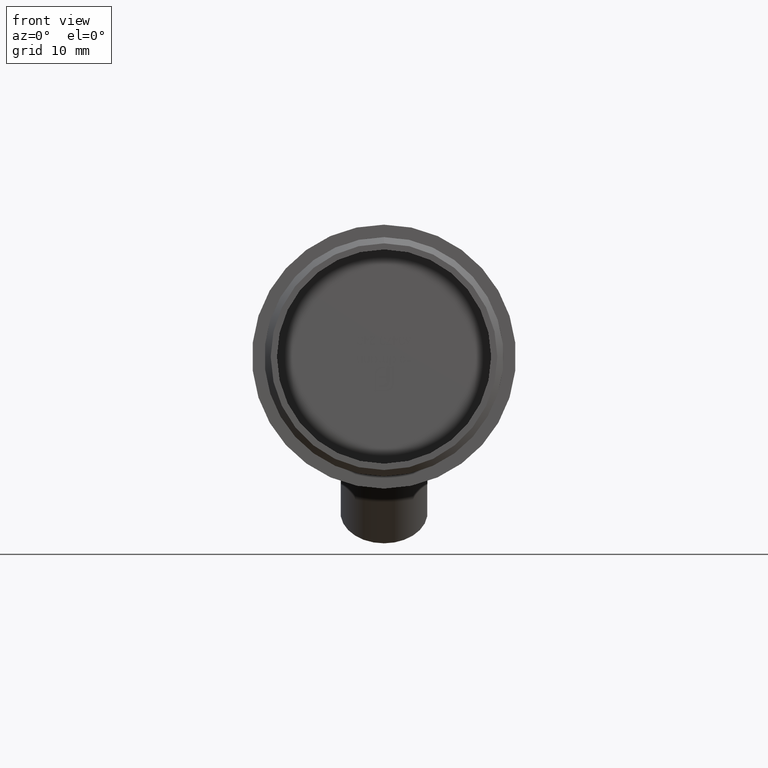
[diagram: clean part render]
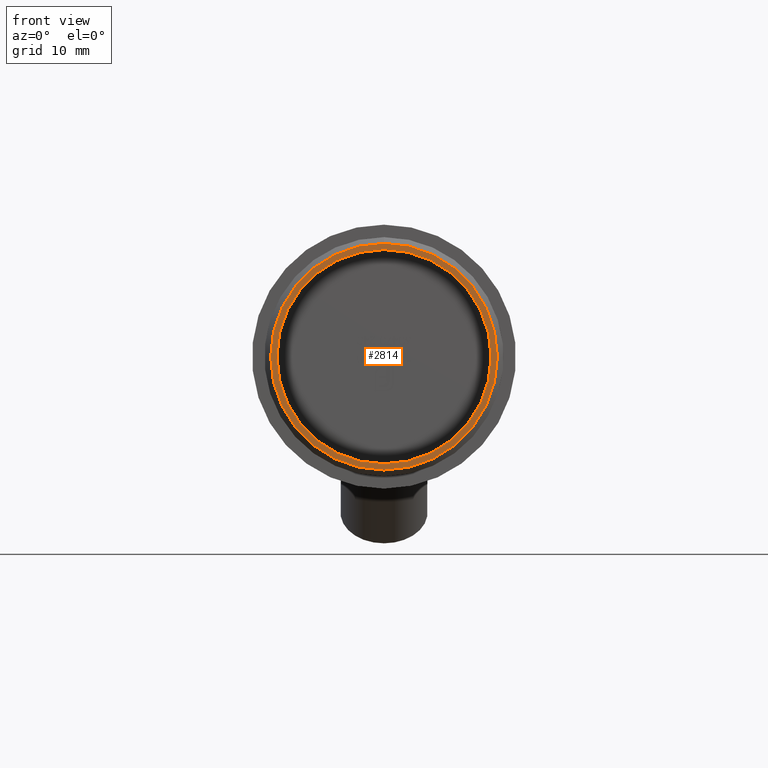
[diagram: same view with one face highlighted and labeled with its STEP entity id]
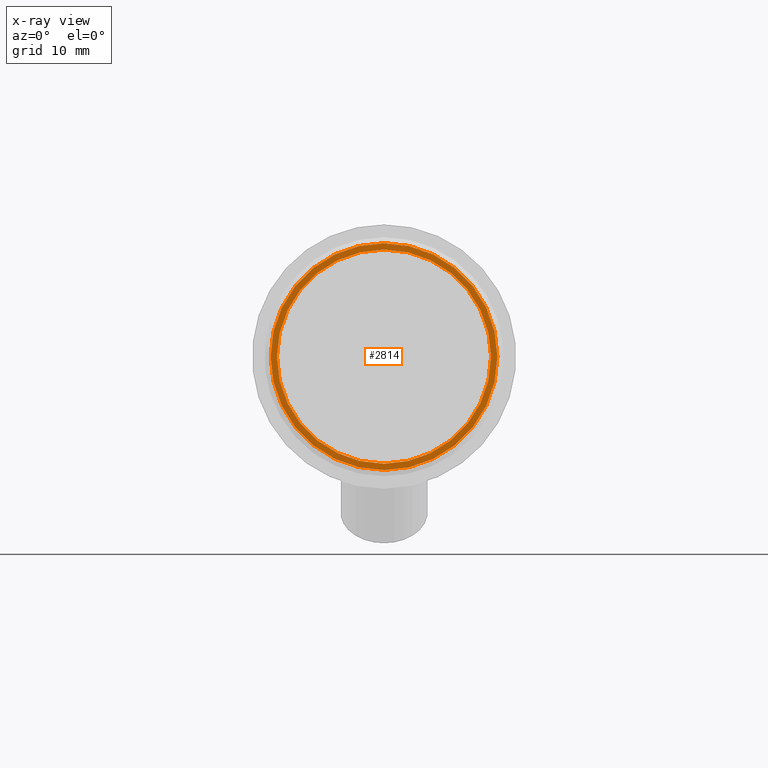
[diagram: x-ray of the same camera — body ghosted, the highlighted face saturated]
A machine part, front view. The second image highlights one B-rep face of the part: STEP entity #2814.
The next image is the same camera in x-ray: the body ghosted, the highlighted face saturated — about 0% of this face is hidden behind the body in this view.
In plain terms, the highlighted planar face has unit normal (0, -1, -0).
Its self-contained STEP definition (entity closure, byte-faithful):
#75 = DIRECTION ( 'NONE',  ( 0.000000000000000000, -1.000000000000000000, -1.224646799147353207E-16 ) ) ;
#593 = CIRCLE ( 'NONE', #7461, 18.20000000000000284 ) ;
#1033 = ORIENTED_EDGE ( 'NONE', *, *, #13016, .T. ) ;
#1674 = CIRCLE ( 'NONE', #2788, 17.19999999999999929 ) ;
#1868 = ORIENTED_EDGE ( 'NONE', *, *, #5928, .F. ) ;
#2276 = VERTEX_POINT ( 'NONE', #5483 ) ;
#2788 = AXIS2_PLACEMENT_3D ( 'NONE', #3938, #13006, #8458 ) ;
#2814 = ADVANCED_FACE ( 'NONE', ( #14632, #6603 ), #3441, .T. ) ;
#3441 = PLANE ( 'NONE',  #9434 ) ;
#3938 = CARTESIAN_POINT ( 'NONE',  ( 0.000000000000000000, -32.00000000000000000, -3.918869757271531052E-15 ) ) ;
#4263 = CARTESIAN_POINT ( 'NONE',  ( 0.000000000000000000, -32.00000000000000000, -3.918869757271531052E-15 ) ) ;
#4657 = CARTESIAN_POINT ( 'NONE',  ( 0.000000000000000000, -32.00000000000000000, 18.19999999999999929 ) ) ;
#4677 = CARTESIAN_POINT ( 'NONE',  ( 0.000000000000000000, -32.00000000000000000, 17.19999999999999574 ) ) ;
#4942 = DIRECTION ( 'NONE',  ( 0.000000000000000000, -1.000000000000000000, -1.224646799147353207E-16 ) ) ;
#5483 = CARTESIAN_POINT ( 'NONE',  ( 2.290089514405550505E-15, -32.00000000000000000, -18.20000000000000639 ) ) ;
#5928 = EDGE_CURVE ( 'NONE', #11546, #10275, #13159, .T. ) ;
#6534 = DIRECTION ( 'NONE',  ( 0.000000000000000000, 0.000000000000000000, -1.000000000000000000 ) ) ;
#6603 = FACE_BOUND ( 'NONE', #7485, .T. ) ;
#6748 = DIRECTION ( 'NONE',  ( 0.000000000000000000, 1.224646799147353207E-16, -1.000000000000000000 ) ) ;
#6763 = AXIS2_PLACEMENT_3D ( 'NONE', #10143, #75, #10193 ) ;
#7461 = AXIS2_PLACEMENT_3D ( 'NONE', #4263, #12216, #6534 ) ;
#7485 = EDGE_LOOP ( 'NONE', ( #9504, #1868 ) ) ;
#8458 = DIRECTION ( 'NONE',  ( 0.000000000000000000, 0.000000000000000000, -1.000000000000000000 ) ) ;
#8819 = EDGE_LOOP ( 'NONE', ( #13675, #1033 ) ) ;
#9434 = AXIS2_PLACEMENT_3D ( 'NONE', #14158, #4942, #6748 ) ;
#9503 = CARTESIAN_POINT ( 'NONE',  ( 0.000000000000000000, -32.00000000000000000, -3.918869757271531052E-15 ) ) ;
#9504 = ORIENTED_EDGE ( 'NONE', *, *, #11013, .F. ) ;
#9527 = CIRCLE ( 'NONE', #11204, 18.20000000000000284 ) ;
#9873 = EDGE_CURVE ( 'NONE', #10956, #2276, #9527, .T. ) ;
#10143 = CARTESIAN_POINT ( 'NONE',  ( 0.000000000000000000, -32.00000000000000000, -3.918869757271531052E-15 ) ) ;
#10193 = DIRECTION ( 'NONE',  ( 0.000000000000000000, 0.000000000000000000, -1.000000000000000000 ) ) ;
#10275 = VERTEX_POINT ( 'NONE', #4677 ) ;
#10956 = VERTEX_POINT ( 'NONE', #4657 ) ;
#11013 = EDGE_CURVE ( 'NONE', #10275, #11546, #1674, .T. ) ;
#11204 = AXIS2_PLACEMENT_3D ( 'NONE', #9503, #11697, #12947 ) ;
#11546 = VERTEX_POINT ( 'NONE', #13840 ) ;
#11697 = DIRECTION ( 'NONE',  ( 0.000000000000000000, -1.000000000000000000, -1.224646799147353207E-16 ) ) ;
#12216 = DIRECTION ( 'NONE',  ( 0.000000000000000000, -1.000000000000000000, -1.224646799147353207E-16 ) ) ;
#12947 = DIRECTION ( 'NONE',  ( 0.000000000000000000, 0.000000000000000000, -1.000000000000000000 ) ) ;
#13006 = DIRECTION ( 'NONE',  ( 0.000000000000000000, -1.000000000000000000, -1.224646799147353207E-16 ) ) ;
#13016 = EDGE_CURVE ( 'NONE', #2276, #10956, #593, .T. ) ;
#13159 = CIRCLE ( 'NONE', #6763, 17.19999999999999929 ) ;
#13675 = ORIENTED_EDGE ( 'NONE', *, *, #9873, .T. ) ;
#13840 = CARTESIAN_POINT ( 'NONE',  ( 2.106392494533447783E-15, -32.00000000000000000, -17.20000000000000284 ) ) ;
#14158 = CARTESIAN_POINT ( 'NONE',  ( 0.000000000000000000, -32.00000000000000000, -3.918869757271531052E-15 ) ) ;
#14632 = FACE_OUTER_BOUND ( 'NONE', #8819, .T. ) ;